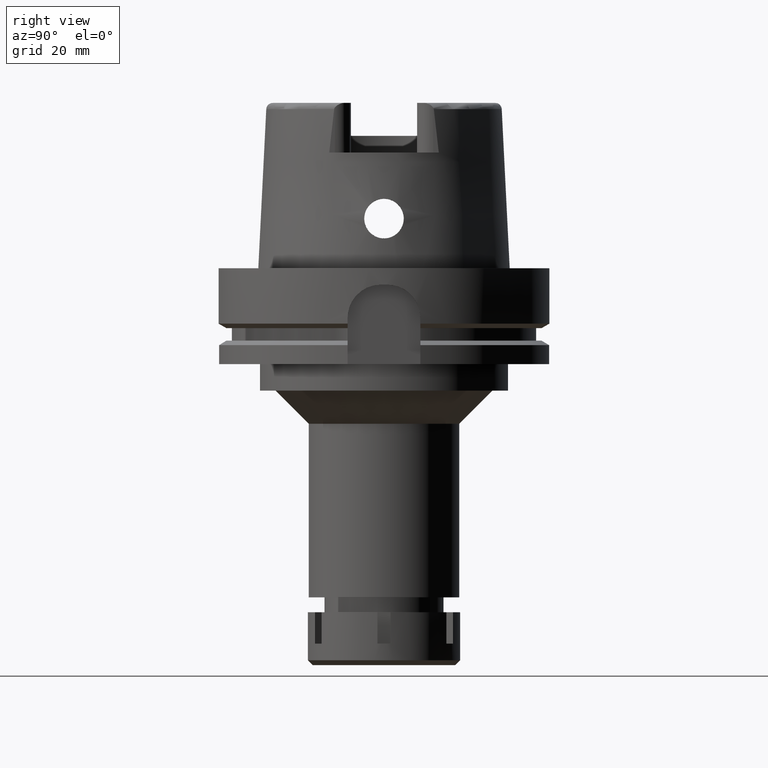
[diagram: clean part render]
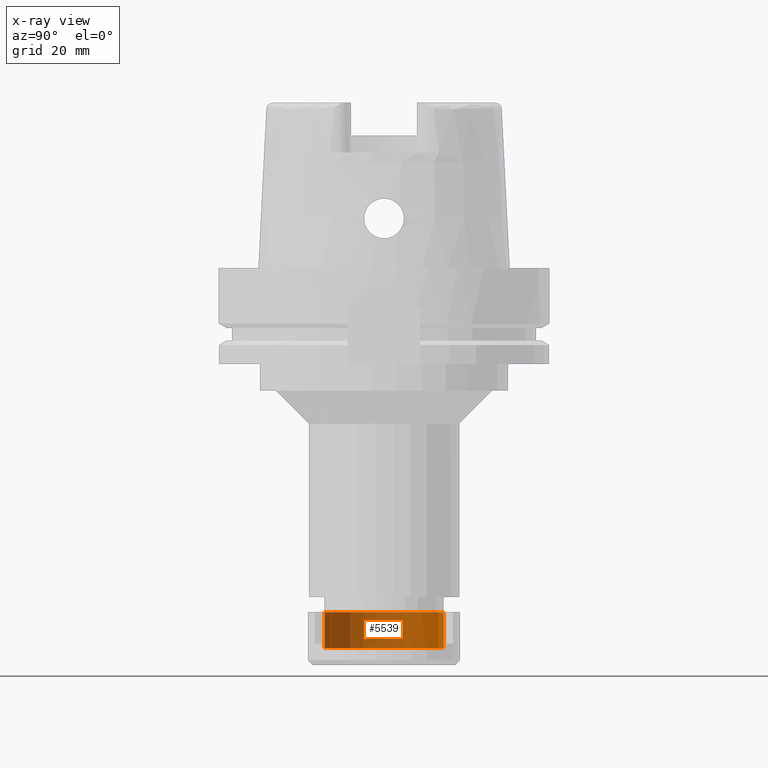
[diagram: x-ray — body ghosted, one internal face saturated and labeled with its STEP entity id]
A machine part, right view, then the same camera in x-ray: the body is ghosted and one INTERNAL B-rep face — a face not visible from any outside direction — is saturated and labeled: STEP entity #5539.
In plain terms, the highlighted cylindrical surface (partial cylindrical patch) has radius 18 mm, axis along (0, 0, -1).
Its self-contained STEP definition (entity closure, byte-faithful):
#24 = CARTESIAN_POINT ( 'NONE',  ( 0.0000000000000000000, 0.0000000000000000000, -10.80000000000000071 ) ) ;
#54 = DIRECTION ( 'NONE',  ( 0.0000000000000000000, 0.0000000000000000000, -1.000000000000000000 ) ) ;
#84 = CARTESIAN_POINT ( 'NONE',  ( 0.0000000000000000000, 0.0000000000000000000, 0.0000000000000000000 ) ) ;
#172 = ORIENTED_EDGE ( 'NONE', *, *, #2821, .T. ) ;
#186 = CARTESIAN_POINT ( 'NONE',  ( 0.0000000000000000000, -18.00000000000000000, -10.80000000000000071 ) ) ;
#461 = VERTEX_POINT ( 'NONE', #186 ) ;
#491 = LINE ( 'NONE', #994, #3711 ) ;
#563 = CIRCLE ( 'NONE', #1956, 18.00000000000000000 ) ;
#959 = DIRECTION ( 'NONE',  ( 0.0000000000000000000, 0.0000000000000000000, 1.000000000000000000 ) ) ;
#994 = CARTESIAN_POINT ( 'NONE',  ( 0.0000000000000000000, 18.00000000000000000, -10.80000000000000071 ) ) ;
#1005 = AXIS2_PLACEMENT_3D ( 'NONE', #84, #1022, #3779 ) ;
#1022 = DIRECTION ( 'NONE',  ( 0.0000000000000000000, 0.0000000000000000000, 1.000000000000000000 ) ) ;
#1607 = VERTEX_POINT ( 'NONE', #3623 ) ;
#1687 = ORIENTED_EDGE ( 'NONE', *, *, #5134, .T. ) ;
#1746 = CARTESIAN_POINT ( 'NONE',  ( 0.0000000000000000000, -18.00000000000000000, -10.80000000000000071 ) ) ;
#1805 = FACE_OUTER_BOUND ( 'NONE', #5747, .T. ) ;
#1863 = AXIS2_PLACEMENT_3D ( 'NONE', #2778, #3268, #3184 ) ;
#1956 = AXIS2_PLACEMENT_3D ( 'NONE', #24, #54, #5578 ) ;
#2218 = CYLINDRICAL_SURFACE ( 'NONE', #1863, 18.00000000000000000 ) ;
#2415 = CARTESIAN_POINT ( 'NONE',  ( 0.0000000000000000000, -18.00000000000000000, 0.0000000000000000000 ) ) ;
#2745 = DIRECTION ( 'NONE',  ( 0.0000000000000000000, 0.0000000000000000000, 1.000000000000000000 ) ) ;
#2778 = CARTESIAN_POINT ( 'NONE',  ( 0.0000000000000000000, 0.0000000000000000000, 0.0000000000000000000 ) ) ;
#2787 = VERTEX_POINT ( 'NONE', #2415 ) ;
#2821 = EDGE_CURVE ( 'NONE', #5393, #2787, #5507, .T. ) ;
#3184 = DIRECTION ( 'NONE',  ( 0.0000000000000000000, -1.000000000000000000, 0.0000000000000000000 ) ) ;
#3268 = DIRECTION ( 'NONE',  ( 0.0000000000000000000, 0.0000000000000000000, -1.000000000000000000 ) ) ;
#3623 = CARTESIAN_POINT ( 'NONE',  ( 0.0000000000000000000, 18.00000000000000000, -10.80000000000000071 ) ) ;
#3711 = VECTOR ( 'NONE', #959, 1000.000000000000000 ) ;
#3725 = ORIENTED_EDGE ( 'NONE', *, *, #4388, .T. ) ;
#3779 = DIRECTION ( 'NONE',  ( 0.0000000000000000000, 1.000000000000000000, 0.0000000000000000000 ) ) ;
#4388 = EDGE_CURVE ( 'NONE', #461, #1607, #563, .T. ) ;
#4576 = LINE ( 'NONE', #1746, #6056 ) ;
#5134 = EDGE_CURVE ( 'NONE', #1607, #5393, #491, .T. ) ;
#5393 = VERTEX_POINT ( 'NONE', #5811 ) ;
#5482 = ORIENTED_EDGE ( 'NONE', *, *, #5515, .F. ) ;
#5507 = CIRCLE ( 'NONE', #1005, 18.00000000000000000 ) ;
#5515 = EDGE_CURVE ( 'NONE', #461, #2787, #4576, .T. ) ;
#5539 = ADVANCED_FACE ( 'NONE', ( #1805 ), #2218, .F. ) ;
#5578 = DIRECTION ( 'NONE',  ( 0.0000000000000000000, -1.000000000000000000, 0.0000000000000000000 ) ) ;
#5747 = EDGE_LOOP ( 'NONE', ( #172, #5482, #3725, #1687 ) ) ;
#5811 = CARTESIAN_POINT ( 'NONE',  ( 0.0000000000000000000, 18.00000000000000000, 0.0000000000000000000 ) ) ;
#6056 = VECTOR ( 'NONE', #2745, 1000.000000000000000 ) ;